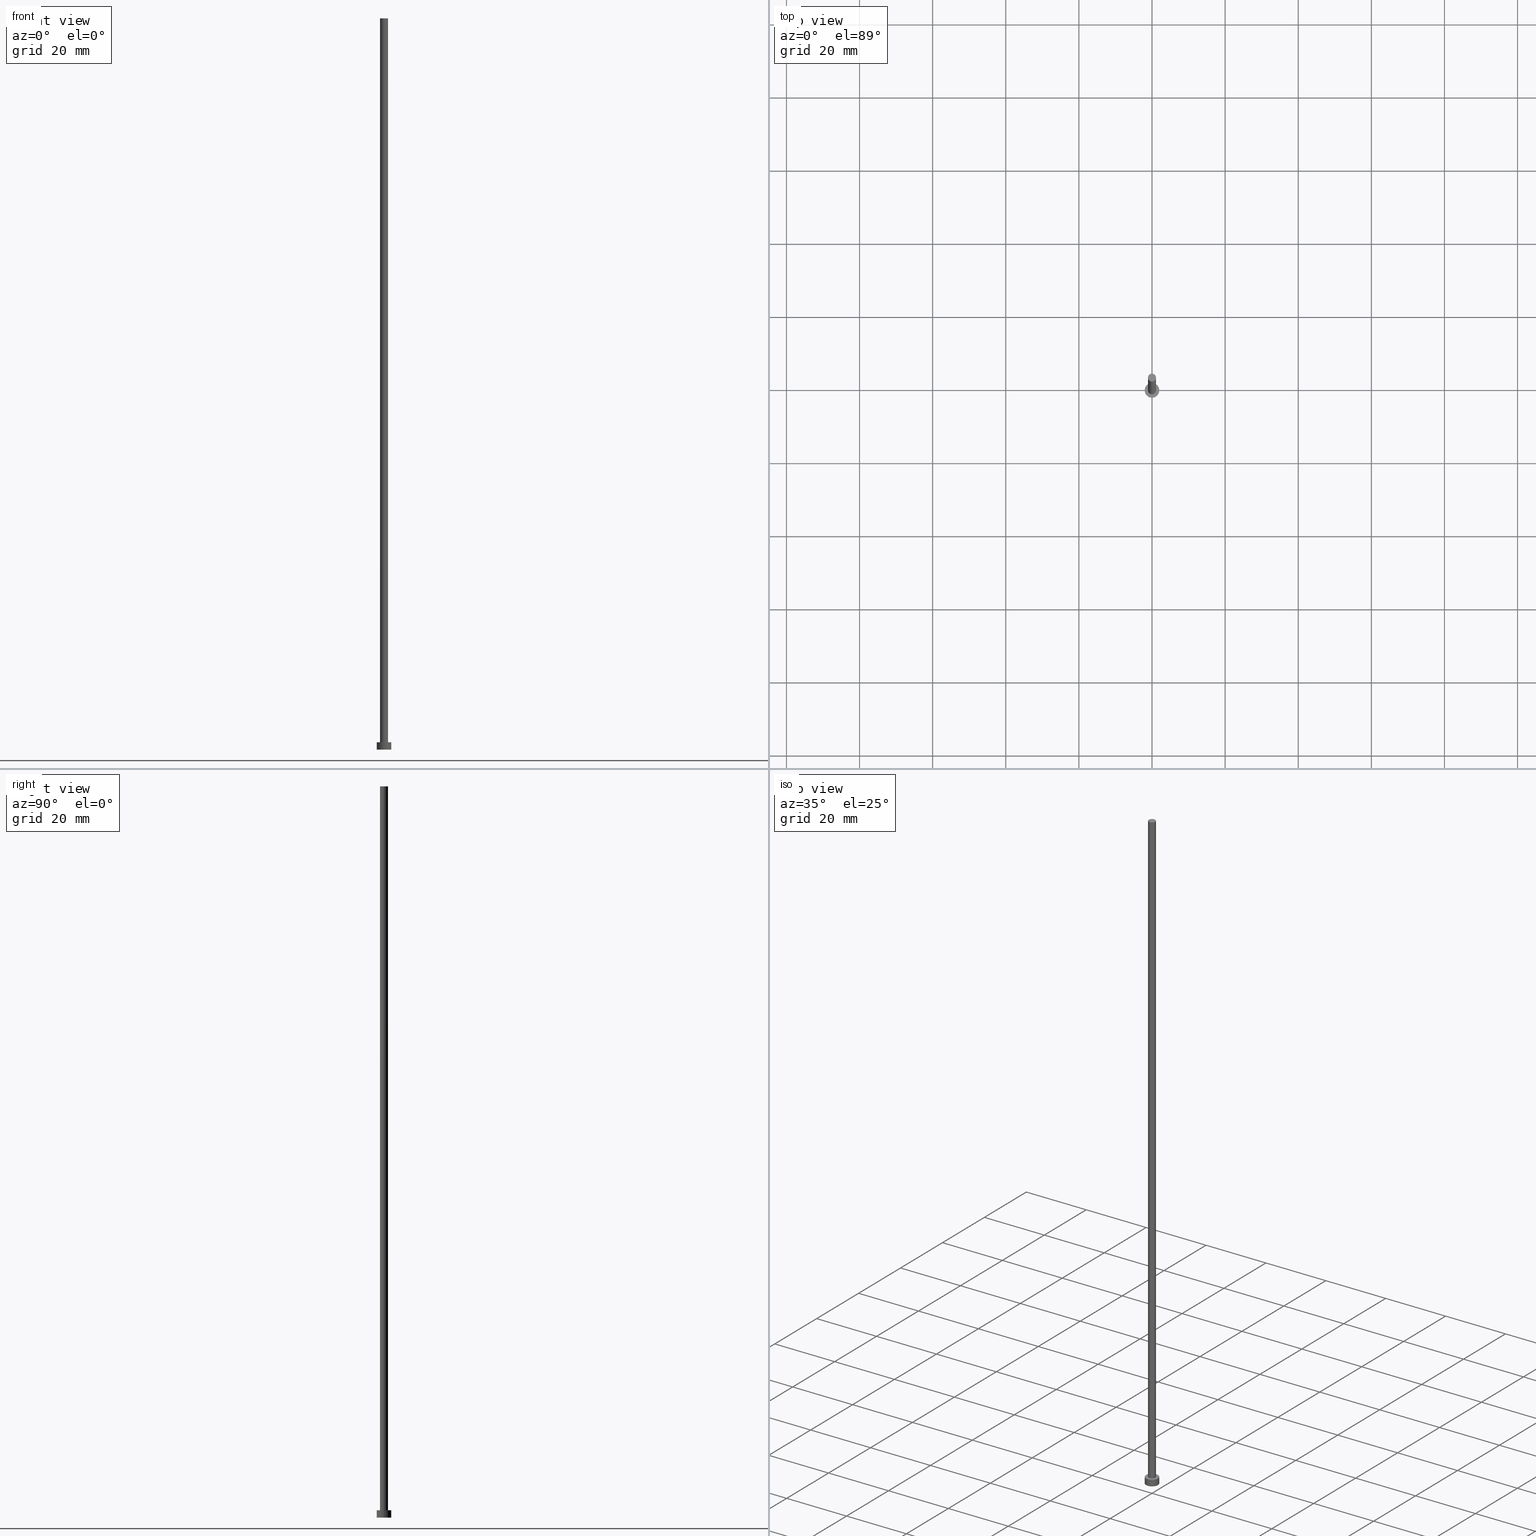
[diagram: canonical four-view strip — front | top / right | iso, engineering-drawing reading convention]
A machine part, canonical four-view strip (front | top / right | iso — engineering-drawing reading convention). The complete STEP part file that produces these views, byte-faithful:
ISO-10303-21;
HEADER;
FILE_DESCRIPTION (( 'STEP AP203' ),
    '1' );
FILE_NAME ('1aa5.STEP',
    '2023-02-13T16:41:57',
    ( '' ),
    ( '' ),
    'SwSTEP 2.0',
    'SolidWorks 2019',
    '' );
FILE_SCHEMA (( 'CONFIG_CONTROL_DESIGN' ));
ENDSEC;

DATA;
#1 = DIRECTION ( 'NONE',  ( 0.000000000000000000, 0.000000000000000000, 1.000000000000000000 ) ) ;
#2 = DIRECTION ( 'NONE',  ( 1.000000000000000000, 0.000000000000000000, 0.000000000000000000 ) ) ;
#3 = EDGE_LOOP ( 'NONE', ( #37, #147, #150, #75 ) ) ;
#4 = AXIS2_PLACEMENT_3D ( 'NONE', #117, #196, #78 ) ;
#5 = PERSON_AND_ORGANIZATION ( #108, #181 ) ;
#6 = VECTOR ( 'NONE', #230, 1000.000000000000000 ) ;
#7 = ORIENTED_EDGE ( 'NONE', *, *, #31, .F. ) ;
#8 = ADVANCED_FACE ( 'NONE', ( #102 ), #11, .T. ) ;
#9 = VERTEX_POINT ( 'NONE', #182 ) ;
#10 = DESIGN_CONTEXT ( 'detailed design', #50, 'design' ) ;
#11 = CYLINDRICAL_SURFACE ( 'NONE', #69, 1.100000000000000089 ) ;
#12 = CIRCLE ( 'NONE', #103, 2.000000000000000000 ) ;
#13 = CARTESIAN_POINT ( 'NONE',  ( 0.000000000000000000, 0.000000000000000000, 200.0000000000000000 ) ) ;
#14 = CARTESIAN_POINT ( 'NONE',  ( 2.000000000000000000, 2.449293598294706414E-16, 0.000000000000000000 ) ) ;
#15 = PERSON_AND_ORGANIZATION ( #108, #181 ) ;
#16 = ORIENTED_EDGE ( 'NONE', *, *, #127, .T. ) ;
#17 = AXIS2_PLACEMENT_3D ( 'NONE', #167, #72, #197 ) ;
#18 = EDGE_CURVE ( 'NONE', #157, #125, #185, .T. ) ;
#19 =( NAMED_UNIT ( * ) SI_UNIT ( $, .STERADIAN. ) SOLID_ANGLE_UNIT ( ) );
#20 = ORIENTED_EDGE ( 'NONE', *, *, #64, .T. ) ;
#21 = CARTESIAN_POINT ( 'NONE',  ( -2.000000000000000000, 0.000000000000000000, 0.000000000000000000 ) ) ;
#22 = CYLINDRICAL_SURFACE ( 'NONE', #219, 1.100000000000000089 ) ;
#23 = CALENDAR_DATE ( 2023, 13, 2 ) ;
#24 = EDGE_CURVE ( 'NONE', #207, #173, #12, .T. ) ;
#25 = EDGE_LOOP ( 'NONE', ( #118, #243 ) ) ;
#26 = AXIS2_PLACEMENT_3D ( 'NONE', #38, #113, #194 ) ;
#27 = APPROVAL_DATE_TIME ( #218, #65 ) ;
#28 = DIRECTION ( 'NONE',  ( -0.000000000000000000, -0.000000000000000000, -1.000000000000000000 ) ) ;
#29 = PERSON_AND_ORGANIZATION ( #108, #181 ) ;
#30 = CC_DESIGN_PERSON_AND_ORGANIZATION_ASSIGNMENT ( #179, #82, ( #240 ) ) ;
#31 = EDGE_CURVE ( 'NONE', #237, #171, #134, .T. ) ;
#32 = SHAPE_DEFINITION_REPRESENTATION ( #203, #215 ) ;
#33 = DIRECTION ( 'NONE',  ( -0.000000000000000000, -0.000000000000000000, -1.000000000000000000 ) ) ;
#34 = CC_DESIGN_APPROVAL ( #183, ( #146 ) ) ;
#35 = DIRECTION ( 'NONE',  ( 1.000000000000000000, 0.000000000000000000, 0.000000000000000000 ) ) ;
#36 = VECTOR ( 'NONE', #70, 1000.000000000000000 ) ;
#37 = ORIENTED_EDGE ( 'NONE', *, *, #41, .F. ) ;
#38 = CARTESIAN_POINT ( 'NONE',  ( 0.000000000000000000, 0.000000000000000000, 2.000000000000000000 ) ) ;
#39 =( GEOMETRIC_REPRESENTATION_CONTEXT ( 3 ) GLOBAL_UNCERTAINTY_ASSIGNED_CONTEXT ( ( #100 ) ) GLOBAL_UNIT_ASSIGNED_CONTEXT ( ( #85, #227, #19 ) ) REPRESENTATION_CONTEXT ( 'NONE', 'WORKASPACE' ) );
#40 = APPROVAL_ROLE ( '' ) ;
#41 = EDGE_CURVE ( 'NONE', #207, #157, #253, .T. ) ;
#42 = AXIS2_PLACEMENT_3D ( 'NONE', #93, #1, #77 ) ;
#43 = EDGE_LOOP ( 'NONE', ( #7, #99 ) ) ;
#44 = AXIS2_PLACEMENT_3D ( 'NONE', #135, #233, #152 ) ;
#45 = DIRECTION ( 'NONE',  ( -1.000000000000000000, 0.000000000000000000, 0.000000000000000000 ) ) ;
#46 = APPROVAL_ROLE ( '' ) ;
#47 = LINE ( 'NONE', #153, #252 ) ;
#48 = APPROVAL_DATE_TIME ( #184, #183 ) ;
#49 = CARTESIAN_POINT ( 'NONE',  ( 0.000000000000000000, 0.000000000000000000, 2.000000000000000000 ) ) ;
#50 = APPLICATION_CONTEXT ( 'configuration controlled 3d designs of mechanical parts and assemblies' ) ;
#51 = CALENDAR_DATE ( 2023, 13, 2 ) ;
#52 = FACE_OUTER_BOUND ( 'NONE', #242, .T. ) ;
#53 = DIRECTION ( 'NONE',  ( 0.000000000000000000, 0.000000000000000000, 1.000000000000000000 ) ) ;
#54 = CIRCLE ( 'NONE', #87, 1.100000000000000089 ) ;
#55 = FACE_OUTER_BOUND ( 'NONE', #3, .T. ) ;
#56 = EDGE_CURVE ( 'NONE', #9, #171, #232, .T. ) ;
#57 = MANIFOLD_SOLID_BREP ( 'P�idat vysunut�m3', #66 ) ;
#58 = PERSON_AND_ORGANIZATION ( #108, #181 ) ;
#59 = CARTESIAN_POINT ( 'NONE',  ( 2.000000000000000000, 2.449293598294706414E-16, 2.000000000000000000 ) ) ;
#60 = ORIENTED_EDGE ( 'NONE', *, *, #18, .T. ) ;
#61 = APPROVAL_STATUS ( 'not_yet_approved' ) ;
#62 = DATE_TIME_ROLE ( 'creation_date' ) ;
#63 = ORIENTED_EDGE ( 'NONE', *, *, #24, .F. ) ;
#64 = EDGE_CURVE ( 'NONE', #73, #237, #128, .T. ) ;
#65 = APPROVAL ( #79, 'NEUR�EN�' ) ;
#66 = CLOSED_SHELL ( 'NONE', ( #231, #105, #92, #137, #200, #8, #83 ) ) ;
#67 = DIRECTION ( 'NONE',  ( -0.000000000000000000, -0.000000000000000000, -1.000000000000000000 ) ) ;
#68 = COORDINATED_UNIVERSAL_TIME_OFFSET ( 1, 0, .AHEAD. ) ;
#69 = AXIS2_PLACEMENT_3D ( 'NONE', #202, #28, #239 ) ;
#70 = DIRECTION ( 'NONE',  ( -0.000000000000000000, -0.000000000000000000, -1.000000000000000000 ) ) ;
#71 = DIRECTION ( 'NONE',  ( 0.000000000000000000, 0.000000000000000000, 1.000000000000000000 ) ) ;
#72 = DIRECTION ( 'NONE',  ( 0.000000000000000000, 0.000000000000000000, 1.000000000000000000 ) ) ;
#73 = VERTEX_POINT ( 'NONE', #226 ) ;
#74 = DIRECTION ( 'NONE',  ( 0.000000000000000000, 0.000000000000000000, 1.000000000000000000 ) ) ;
#75 = ORIENTED_EDGE ( 'NONE', *, *, #209, .T. ) ;
#76 = CIRCLE ( 'NONE', #142, 2.000000000000000000 ) ;
#77 = DIRECTION ( 'NONE',  ( 1.000000000000000000, 0.000000000000000000, 0.000000000000000000 ) ) ;
#78 = DIRECTION ( 'NONE',  ( 1.000000000000000000, 0.000000000000000000, -0.000000000000000000 ) ) ;
#79 = APPROVAL_STATUS ( 'not_yet_approved' ) ;
#80 = CARTESIAN_POINT ( 'NONE',  ( 0.000000000000000000, 0.000000000000000000, 2.000000000000000000 ) ) ;
#81 = ORIENTED_EDGE ( 'NONE', *, *, #56, .F. ) ;
#82 = PERSON_AND_ORGANIZATION_ROLE ( 'creator' ) ;
#83 = ADVANCED_FACE ( 'NONE', ( #52 ), #188, .T. ) ;
#84 = EDGE_LOOP ( 'NONE', ( #16, #176 ) ) ;
#85 =( LENGTH_UNIT ( ) NAMED_UNIT ( * ) SI_UNIT ( .MILLI., .METRE. ) );
#86 = DIRECTION ( 'NONE',  ( 0.000000000000000000, 0.000000000000000000, 1.000000000000000000 ) ) ;
#87 = AXIS2_PLACEMENT_3D ( 'NONE', #204, #174, #155 ) ;
#88 = FACE_OUTER_BOUND ( 'NONE', #235, .T. ) ;
#89 = APPROVAL_PERSON_ORGANIZATION ( #29, #247, #46 ) ;
#90 = APPROVAL_DATE_TIME ( #225, #247 ) ;
#91 = CARTESIAN_POINT ( 'NONE',  ( -1.100000000000000089, 0.000000000000000000, 200.0000000000000000 ) ) ;
#92 = ADVANCED_FACE ( 'NONE', ( #55 ), #250, .T. ) ;
#93 = CARTESIAN_POINT ( 'NONE',  ( 0.000000000000000000, 0.000000000000000000, 200.0000000000000000 ) ) ;
#94 = ORIENTED_EDGE ( 'NONE', *, *, #106, .T. ) ;
#95 = COORDINATED_UNIVERSAL_TIME_OFFSET ( 1, 0, .AHEAD. ) ;
#96 = DIRECTION ( 'NONE',  ( -0.000000000000000000, -0.000000000000000000, -1.000000000000000000 ) ) ;
#97 = CC_DESIGN_SECURITY_CLASSIFICATION ( #146, ( #240 ) ) ;
#98 = DATE_TIME_ROLE ( 'classification_date' ) ;
#99 = ORIENTED_EDGE ( 'NONE', *, *, #106, .F. ) ;
#100 = UNCERTAINTY_MEASURE_WITH_UNIT (LENGTH_MEASURE( 1.000000000000000082E-05 ), #85, 'distance_accuracy_value', 'NONE');
#101 = PRODUCT_DEFINITION ( 'NEZN�M�', '', #240, #10 ) ;
#102 = FACE_OUTER_BOUND ( 'NONE', #124, .T. ) ;
#103 = AXIS2_PLACEMENT_3D ( 'NONE', #129, #234, #166 ) ;
#104 = LOCAL_TIME ( 17, 41, 57.00000000000000000, #228 ) ;
#105 = ADVANCED_FACE ( 'NONE', ( #88 ), #245, .T. ) ;
#106 = EDGE_CURVE ( 'NONE', #171, #237, #54, .T. ) ;
#107 = CIRCLE ( 'NONE', #193, 2.000000000000000000 ) ;
#108 = PERSON ( 'NEUR�EN�', 'NEUR�EN�', 'NEUR�EN�', ('NEUR�EN�'), ('NEUR�EN�'), ('NEUR�EN�') ) ;
#109 = CARTESIAN_POINT ( 'NONE',  ( 1.100000000000000089, 1.347111479062088503E-16, 2.000000000000000000 ) ) ;
#110 = VECTOR ( 'NONE', #33, 1000.000000000000000 ) ;
#111 = APPLICATION_PROTOCOL_DEFINITION ( 'international standard', 'config_control_design', 1994, #140 ) ;
#112 = DIRECTION ( 'NONE',  ( -0.000000000000000000, -0.000000000000000000, -1.000000000000000000 ) ) ;
#113 = DIRECTION ( 'NONE',  ( -0.000000000000000000, -0.000000000000000000, -1.000000000000000000 ) ) ;
#114 = LOCAL_TIME ( 17, 41, 57.00000000000000000, #115 ) ;
#115 = COORDINATED_UNIVERSAL_TIME_OFFSET ( 1, 0, .AHEAD. ) ;
#116 = FACE_OUTER_BOUND ( 'NONE', #84, .T. ) ;
#117 = CARTESIAN_POINT ( 'NONE',  ( 0.000000000000000000, 0.000000000000000000, 0.000000000000000000 ) ) ;
#118 = ORIENTED_EDGE ( 'NONE', *, *, #209, .F. ) ;
#119 = FACE_BOUND ( 'NONE', #43, .T. ) ;
#120 = CC_DESIGN_PERSON_AND_ORGANIZATION_ASSIGNMENT ( #5, #211, ( #240 ) ) ;
#121 = APPROVAL_ROLE ( '' ) ;
#122 = ORIENTED_EDGE ( 'NONE', *, *, #31, .T. ) ;
#123 = APPLICATION_PROTOCOL_DEFINITION ( 'international standard', 'config_control_design', 1994, #50 ) ;
#124 = EDGE_LOOP ( 'NONE', ( #81, #158, #20, #122 ) ) ;
#125 = VERTEX_POINT ( 'NONE', #21 ) ;
#126 = APPROVAL_PERSON_ORGANIZATION ( #175, #183, #40 ) ;
#127 = EDGE_CURVE ( 'NONE', #173, #207, #76, .T. ) ;
#128 = LINE ( 'NONE', #91, #6 ) ;
#129 = CARTESIAN_POINT ( 'NONE',  ( 0.000000000000000000, 0.000000000000000000, 2.000000000000000000 ) ) ;
#130 = PLANE ( 'NONE',  #4 ) ;
#131 = DIRECTION ( 'NONE',  ( 1.000000000000000000, 0.000000000000000000, -0.000000000000000000 ) ) ;
#132 = PERSON_AND_ORGANIZATION_ROLE ( 'classification_officer' ) ;
#133 = AXIS2_PLACEMENT_3D ( 'NONE', #249, #190, #172 ) ;
#134 = CIRCLE ( 'NONE', #223, 1.100000000000000089 ) ;
#135 = CARTESIAN_POINT ( 'NONE',  ( 0.000000000000000000, 0.000000000000000000, 2.000000000000000000 ) ) ;
#136 = LOCAL_TIME ( 17, 41, 57.00000000000000000, #95 ) ;
#137 = ADVANCED_FACE ( 'NONE', ( #119, #116 ), #255, .T. ) ;
#138 = EDGE_LOOP ( 'NONE', ( #254, #154, #94, #220 ) ) ;
#139 = CC_DESIGN_APPROVAL ( #65, ( #240 ) ) ;
#140 = APPLICATION_CONTEXT ( 'configuration controlled 3d designs of mechanical parts and assemblies' ) ;
#141 = EDGE_CURVE ( 'NONE', #173, #125, #47, .T. ) ;
#142 = AXIS2_PLACEMENT_3D ( 'NONE', #80, #217, #2 ) ;
#143 = PRODUCT ( '1aa5', '1aa5', '', ( #165 ) ) ;
#144 = CARTESIAN_POINT ( 'NONE',  ( 1.100000000000000089, 1.347111479062088503E-16, 200.0000000000000000 ) ) ;
#145 = CALENDAR_DATE ( 2023, 13, 2 ) ;
#146 = SECURITY_CLASSIFICATION ( '', '', #216 ) ;
#147 = ORIENTED_EDGE ( 'NONE', *, *, #127, .F. ) ;
#148 = CARTESIAN_POINT ( 'NONE',  ( -2.000000000000000000, 0.000000000000000000, 2.000000000000000000 ) ) ;
#149 = PRODUCT_RELATED_PRODUCT_CATEGORY ( 'detail', '', ( #143 ) ) ;
#150 = ORIENTED_EDGE ( 'NONE', *, *, #141, .T. ) ;
#151 = CIRCLE ( 'NONE', #17, 1.100000000000000089 ) ;
#152 = DIRECTION ( 'NONE',  ( 1.000000000000000000, 0.000000000000000000, -0.000000000000000000 ) ) ;
#153 = CARTESIAN_POINT ( 'NONE',  ( -2.000000000000000000, 0.000000000000000000, 2.000000000000000000 ) ) ;
#154 = ORIENTED_EDGE ( 'NONE', *, *, #56, .T. ) ;
#155 = DIRECTION ( 'NONE',  ( 1.000000000000000000, 0.000000000000000000, 0.000000000000000000 ) ) ;
#156 = COORDINATED_UNIVERSAL_TIME_OFFSET ( 1, 0, .AHEAD. ) ;
#157 = VERTEX_POINT ( 'NONE', #14 ) ;
#158 = ORIENTED_EDGE ( 'NONE', *, *, #164, .F. ) ;
#159 = PERSON_AND_ORGANIZATION_ROLE ( 'design_owner' ) ;
#160 = ORIENTED_EDGE ( 'NONE', *, *, #41, .T. ) ;
#161 = DIRECTION ( 'NONE',  ( 1.000000000000000000, 0.000000000000000000, 0.000000000000000000 ) ) ;
#162 = AXIS2_PLACEMENT_3D ( 'NONE', #49, #67, #224 ) ;
#163 = CC_DESIGN_PERSON_AND_ORGANIZATION_ASSIGNMENT ( #198, #132, ( #146 ) ) ;
#164 = EDGE_CURVE ( 'NONE', #73, #9, #246, .T. ) ;
#165 = MECHANICAL_CONTEXT ( 'NONE', #140, 'mechanical' ) ;
#166 = DIRECTION ( 'NONE',  ( 1.000000000000000000, 0.000000000000000000, 0.000000000000000000 ) ) ;
#167 = CARTESIAN_POINT ( 'NONE',  ( 0.000000000000000000, 0.000000000000000000, 200.0000000000000000 ) ) ;
#168 = DATE_AND_TIME ( #51, #104 ) ;
#169 = LOCAL_TIME ( 17, 41, 57.00000000000000000, #68 ) ;
#170 = CC_DESIGN_PERSON_AND_ORGANIZATION_ASSIGNMENT ( #15, #159, ( #143 ) ) ;
#171 = VERTEX_POINT ( 'NONE', #109 ) ;
#172 = DIRECTION ( 'NONE',  ( 1.000000000000000000, 0.000000000000000000, 0.000000000000000000 ) ) ;
#173 = VERTEX_POINT ( 'NONE', #148 ) ;
#174 = DIRECTION ( 'NONE',  ( 0.000000000000000000, 0.000000000000000000, 1.000000000000000000 ) ) ;
#175 = PERSON_AND_ORGANIZATION ( #108, #181 ) ;
#176 = ORIENTED_EDGE ( 'NONE', *, *, #24, .T. ) ;
#177 = AXIS2_PLACEMENT_3D ( 'NONE', #13, #74, #131 ) ;
#178 = ORIENTED_EDGE ( 'NONE', *, *, #141, .F. ) ;
#179 = PERSON_AND_ORGANIZATION ( #108, #181 ) ;
#180 = ORIENTED_EDGE ( 'NONE', *, *, #164, .T. ) ;
#181 = ORGANIZATION ( 'NEUR�EN�', 'NEUR�EN�', '' ) ;
#182 = CARTESIAN_POINT ( 'NONE',  ( 1.100000000000000089, 1.347111479062088503E-16, 200.0000000000000000 ) ) ;
#183 = APPROVAL ( #61, 'NEUR�EN�' ) ;
#184 = DATE_AND_TIME ( #195, #114 ) ;
#185 = CIRCLE ( 'NONE', #214, 2.000000000000000000 ) ;
#186 = CARTESIAN_POINT ( 'NONE',  ( 0.000000000000000000, 0.000000000000000000, 0.000000000000000000 ) ) ;
#187 = PERSON_AND_ORGANIZATION ( #108, #181 ) ;
#188 = PLANE ( 'NONE',  #177 ) ;
#189 = CARTESIAN_POINT ( 'NONE',  ( 0.000000000000000000, 0.000000000000000000, 0.000000000000000000 ) ) ;
#190 = DIRECTION ( 'NONE',  ( 0.000000000000000000, 0.000000000000000000, 1.000000000000000000 ) ) ;
#191 = PERSON_AND_ORGANIZATION_ROLE ( 'creator' ) ;
#192 = CARTESIAN_POINT ( 'NONE',  ( 0.000000000000000000, 0.000000000000000000, 200.0000000000000000 ) ) ;
#193 = AXIS2_PLACEMENT_3D ( 'NONE', #189, #53, #212 ) ;
#194 = DIRECTION ( 'NONE',  ( -1.000000000000000000, 0.000000000000000000, 0.000000000000000000 ) ) ;
#195 = CALENDAR_DATE ( 2023, 13, 2 ) ;
#196 = DIRECTION ( 'NONE',  ( 0.000000000000000000, 0.000000000000000000, 1.000000000000000000 ) ) ;
#197 = DIRECTION ( 'NONE',  ( 1.000000000000000000, 0.000000000000000000, 0.000000000000000000 ) ) ;
#198 = PERSON_AND_ORGANIZATION ( #108, #181 ) ;
#199 = CALENDAR_DATE ( 2023, 13, 2 ) ;
#200 = ADVANCED_FACE ( 'NONE', ( #210 ), #130, .F. ) ;
#201 = CARTESIAN_POINT ( 'NONE',  ( -1.100000000000000089, 0.000000000000000000, 2.000000000000000000 ) ) ;
#202 = CARTESIAN_POINT ( 'NONE',  ( 0.000000000000000000, 0.000000000000000000, 200.0000000000000000 ) ) ;
#203 = PRODUCT_DEFINITION_SHAPE ( 'NONE', 'NONE',  #101 ) ;
#204 = CARTESIAN_POINT ( 'NONE',  ( 0.000000000000000000, 0.000000000000000000, 2.000000000000000000 ) ) ;
#205 = CC_DESIGN_APPROVAL ( #247, ( #101 ) ) ;
#206 = FACE_OUTER_BOUND ( 'NONE', #138, .T. ) ;
#207 = VERTEX_POINT ( 'NONE', #59 ) ;
#208 = CC_DESIGN_DATE_AND_TIME_ASSIGNMENT ( #168, #62, ( #101 ) ) ;
#209 = EDGE_CURVE ( 'NONE', #125, #157, #107, .T. ) ;
#210 = FACE_OUTER_BOUND ( 'NONE', #25, .T. ) ;
#211 = PERSON_AND_ORGANIZATION_ROLE ( 'design_supplier' ) ;
#212 = DIRECTION ( 'NONE',  ( 1.000000000000000000, 0.000000000000000000, 0.000000000000000000 ) ) ;
#213 = ORIENTED_EDGE ( 'NONE', *, *, #221, .T. ) ;
#214 = AXIS2_PLACEMENT_3D ( 'NONE', #186, #86, #161 ) ;
#215 = ADVANCED_BREP_SHAPE_REPRESENTATION ( '1aa5', ( #57, #133 ), #39 ) ;
#216 = SECURITY_CLASSIFICATION_LEVEL ( 'unclassified' ) ;
#217 = DIRECTION ( 'NONE',  ( 0.000000000000000000, 0.000000000000000000, 1.000000000000000000 ) ) ;
#218 = DATE_AND_TIME ( #199, #236 ) ;
#219 = AXIS2_PLACEMENT_3D ( 'NONE', #192, #96, #45 ) ;
#220 = ORIENTED_EDGE ( 'NONE', *, *, #64, .F. ) ;
#221 = EDGE_CURVE ( 'NONE', #9, #73, #151, .T. ) ;
#222 = APPROVAL_PERSON_ORGANIZATION ( #58, #65, #121 ) ;
#223 = AXIS2_PLACEMENT_3D ( 'NONE', #251, #71, #35 ) ;
#224 = DIRECTION ( 'NONE',  ( -1.000000000000000000, 0.000000000000000000, 0.000000000000000000 ) ) ;
#225 = DATE_AND_TIME ( #145, #169 ) ;
#226 = CARTESIAN_POINT ( 'NONE',  ( -1.100000000000000089, 0.000000000000000000, 200.0000000000000000 ) ) ;
#227 =( NAMED_UNIT ( * ) PLANE_ANGLE_UNIT ( ) SI_UNIT ( $, .RADIAN. ) );
#228 = COORDINATED_UNIVERSAL_TIME_OFFSET ( 1, 0, .AHEAD. ) ;
#229 = CC_DESIGN_PERSON_AND_ORGANIZATION_ASSIGNMENT ( #187, #191, ( #101 ) ) ;
#230 = DIRECTION ( 'NONE',  ( -0.000000000000000000, -0.000000000000000000, -1.000000000000000000 ) ) ;
#231 = ADVANCED_FACE ( 'NONE', ( #206 ), #22, .T. ) ;
#232 = LINE ( 'NONE', #144, #110 ) ;
#233 = DIRECTION ( 'NONE',  ( 0.000000000000000000, 0.000000000000000000, 1.000000000000000000 ) ) ;
#234 = DIRECTION ( 'NONE',  ( 0.000000000000000000, 0.000000000000000000, 1.000000000000000000 ) ) ;
#235 = EDGE_LOOP ( 'NONE', ( #63, #160, #60, #178 ) ) ;
#236 = LOCAL_TIME ( 17, 41, 57.00000000000000000, #156 ) ;
#237 = VERTEX_POINT ( 'NONE', #201 ) ;
#238 = DATE_AND_TIME ( #23, #136 ) ;
#239 = DIRECTION ( 'NONE',  ( -1.000000000000000000, 0.000000000000000000, 0.000000000000000000 ) ) ;
#240 = PRODUCT_DEFINITION_FORMATION_WITH_SPECIFIED_SOURCE ( 'LIBOVOLN�', '', #143, .NOT_KNOWN. ) ;
#241 = CC_DESIGN_DATE_AND_TIME_ASSIGNMENT ( #238, #98, ( #146 ) ) ;
#242 = EDGE_LOOP ( 'NONE', ( #180, #213 ) ) ;
#243 = ORIENTED_EDGE ( 'NONE', *, *, #18, .F. ) ;
#244 = APPROVAL_STATUS ( 'not_yet_approved' ) ;
#245 = CYLINDRICAL_SURFACE ( 'NONE', #162, 2.000000000000000000 ) ;
#246 = CIRCLE ( 'NONE', #42, 1.100000000000000089 ) ;
#247 = APPROVAL ( #244, 'NEUR�EN�' ) ;
#248 = CARTESIAN_POINT ( 'NONE',  ( 2.000000000000000000, 2.449293598294706414E-16, 2.000000000000000000 ) ) ;
#249 = CARTESIAN_POINT ( 'NONE',  ( 0.000000000000000000, 0.000000000000000000, 0.000000000000000000 ) ) ;
#250 = CYLINDRICAL_SURFACE ( 'NONE', #26, 2.000000000000000000 ) ;
#251 = CARTESIAN_POINT ( 'NONE',  ( 0.000000000000000000, 0.000000000000000000, 2.000000000000000000 ) ) ;
#252 = VECTOR ( 'NONE', #112, 1000.000000000000000 ) ;
#253 = LINE ( 'NONE', #248, #36 ) ;
#254 = ORIENTED_EDGE ( 'NONE', *, *, #221, .F. ) ;
#255 = PLANE ( 'NONE',  #44 ) ;
ENDSEC;
END-ISO-10303-21;
